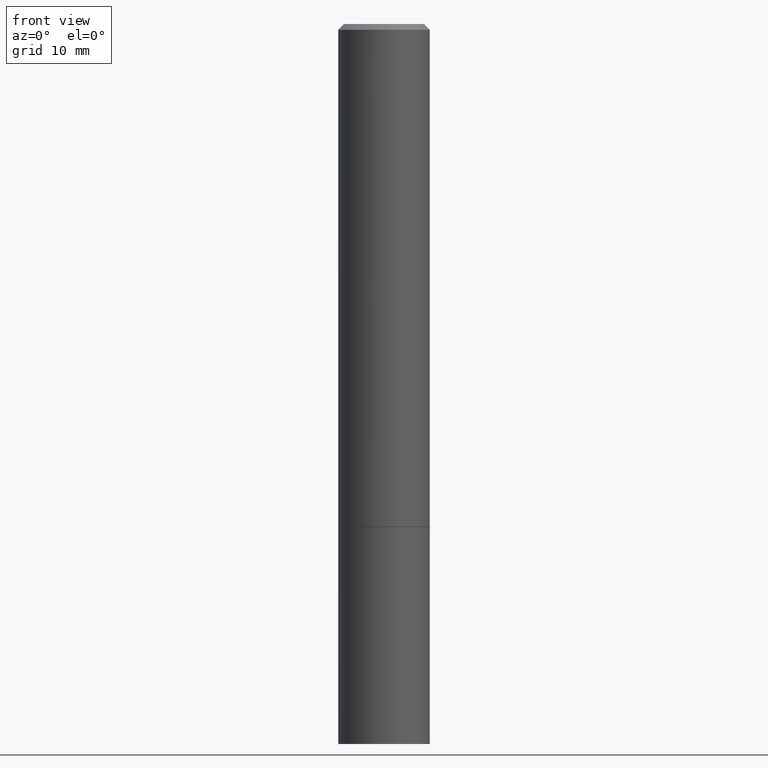
[diagram: clean part render]
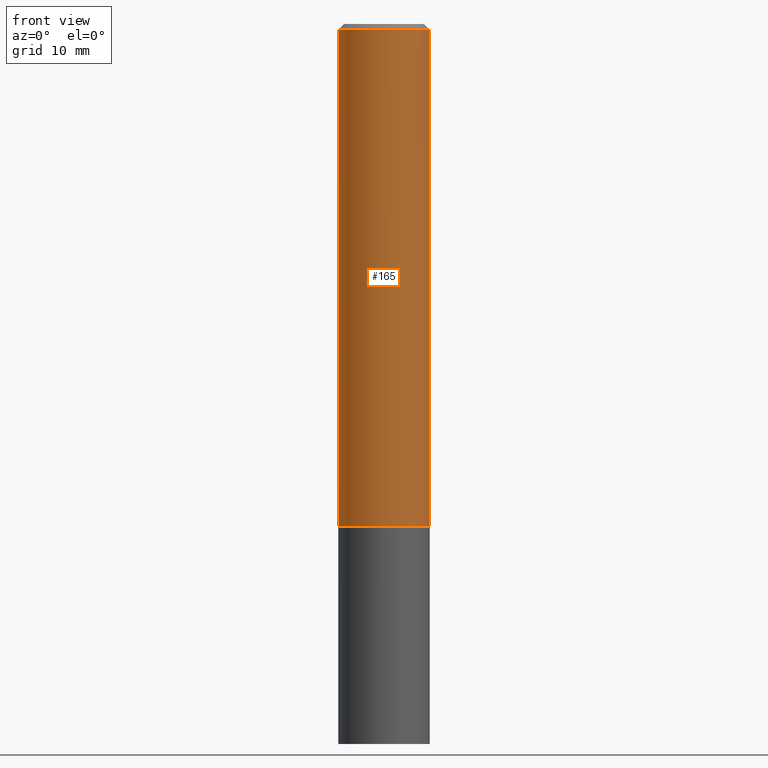
[diagram: same view with one face highlighted and labeled with its STEP entity id]
A machine part, front view. The second image highlights one B-rep face of the part: STEP entity #165.
In plain terms, the highlighted cylindrical surface (partial cylindrical patch) has radius 4.0005 mm, axis along (-0, 0, 1).
Its self-contained STEP definition (entity closure, byte-faithful):
#9 = CARTESIAN_POINT ( 'NONE',  ( -0.1575000000000000011, -1.938210825535841109E-15, -1.731300000000000283 ) ) ;
#64 = EDGE_LOOP ( 'NONE', ( #306, #315, #77, #67 ) ) ;
#67 = ORIENTED_EDGE ( 'NONE', *, *, #349, .F. ) ;
#68 = CARTESIAN_POINT ( 'NONE',  ( 4.890937612370281041E-31, -6.982962677686302702E-17, -0.02000000000000003511 ) ) ;
#77 = ORIENTED_EDGE ( 'NONE', *, *, #172, .T. ) ;
#86 = DIRECTION ( 'NONE',  ( 1.000000000000000000, -6.982962677686268288E-15, 0.000000000000000000 ) ) ;
#87 = CARTESIAN_POINT ( 'NONE',  ( -0.1574999999999997513, 1.029986994958722210E-15, -0.02000000000000003511 ) ) ;
#91 = DIRECTION ( 'NONE',  ( 1.000000000000000000, -6.982962677686266711E-15, 4.876176775795935793E-29 ) ) ;
#98 = EDGE_CURVE ( 'NONE', #318, #300, #201, .T. ) ;
#103 = DIRECTION ( 'NONE',  ( -2.445468806185136597E-29, 3.491481338843145583E-15, 1.000000000000000000 ) ) ;
#117 = DIRECTION ( 'NONE',  ( 1.000000000000000000, -6.982962677686266711E-15, 0.000000000000000000 ) ) ;
#125 = CARTESIAN_POINT ( 'NONE',  ( 4.233840144148327350E-29, -6.044801641939138860E-15, -1.731300000000000283 ) ) ;
#136 = AXIS2_PLACEMENT_3D ( 'NONE', #125, #103, #86 ) ;
#165 = ADVANCED_FACE ( 'NONE', ( #189 ), #323, .T. ) ;
#172 = EDGE_CURVE ( 'NONE', #300, #218, #197, .T. ) ;
#177 = LINE ( 'NONE', #274, #202 ) ;
#182 = CARTESIAN_POINT ( 'NONE',  ( 0.1575000000000000011, -7.144618263674725551E-15, -1.731300000000000283 ) ) ;
#189 = FACE_OUTER_BOUND ( 'NONE', #64, .T. ) ;
#194 = DIRECTION ( 'NONE',  ( -2.445468806185136597E-29, 3.491481338843145583E-15, 1.000000000000000000 ) ) ;
#197 = LINE ( 'NONE', #352, #208 ) ;
#201 = CIRCLE ( 'NONE', #136, 0.1575000000000000011 ) ;
#202 = VECTOR ( 'NONE', #242, 39.37007874015748143 ) ;
#208 = VECTOR ( 'NONE', #229, 39.37007874015748143 ) ;
#218 = VERTEX_POINT ( 'NONE', #276 ) ;
#229 = DIRECTION ( 'NONE',  ( -2.445468806185136877E-29, 3.491481338843145188E-15, 1.000000000000000000 ) ) ;
#242 = DIRECTION ( 'NONE',  ( -2.445468806185136877E-29, 3.491481338843145188E-15, 1.000000000000000000 ) ) ;
#264 = CIRCLE ( 'NONE', #328, 0.1574999999999997513 ) ;
#265 = DIRECTION ( 'NONE',  ( -2.445468806185136597E-29, 3.491481338843145583E-15, 1.000000000000000000 ) ) ;
#274 = CARTESIAN_POINT ( 'NONE',  ( -0.1574999999999998901, 1.119104808822157012E-15, -7.747322767151471379E-30 ) ) ;
#276 = CARTESIAN_POINT ( 'NONE',  ( 0.1574999999999997513, -1.150358061425877697E-15, -0.02000000000000003511 ) ) ;
#288 = AXIS2_PLACEMENT_3D ( 'NONE', #355, #265, #91 ) ;
#292 = EDGE_CURVE ( 'NONE', #318, #330, #177, .T. ) ;
#300 = VERTEX_POINT ( 'NONE', #182 ) ;
#306 = ORIENTED_EDGE ( 'NONE', *, *, #292, .F. ) ;
#315 = ORIENTED_EDGE ( 'NONE', *, *, #98, .T. ) ;
#318 = VERTEX_POINT ( 'NONE', #9 ) ;
#323 = CYLINDRICAL_SURFACE ( 'NONE', #288, 0.1574999999999998901 ) ;
#328 = AXIS2_PLACEMENT_3D ( 'NONE', #68, #194, #117 ) ;
#330 = VERTEX_POINT ( 'NONE', #87 ) ;
#349 = EDGE_CURVE ( 'NONE', #330, #218, #264, .T. ) ;
#352 = CARTESIAN_POINT ( 'NONE',  ( 0.1574999999999998901, -1.099816621735586297E-15, 7.679978421878593829E-30 ) ) ;
#355 = CARTESIAN_POINT ( 'NONE',  ( 0.000000000000000000, 0.000000000000000000, 0.000000000000000000 ) ) ;